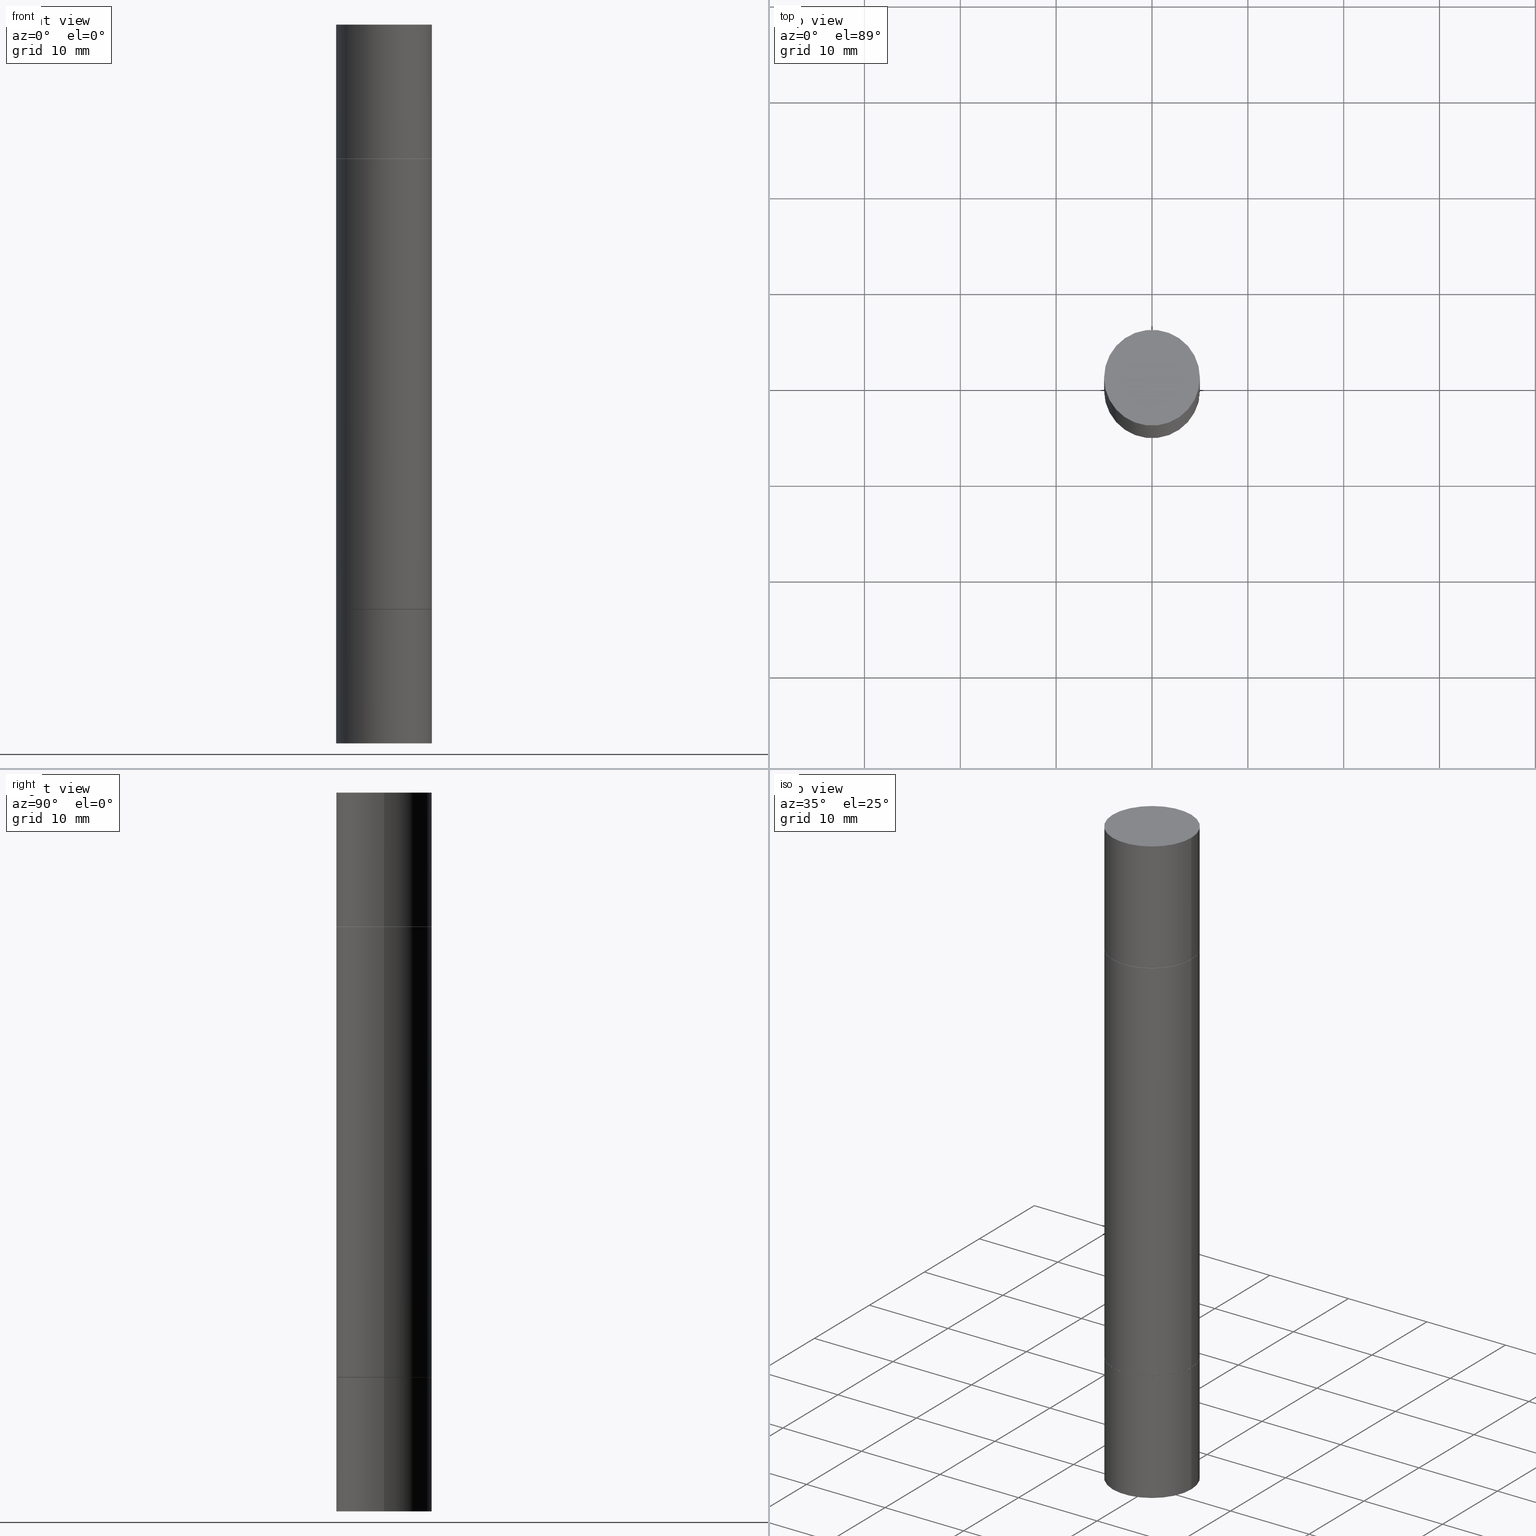
[diagram: canonical four-view strip — front | top / right | iso, engineering-drawing reading convention]
A machine part, canonical four-view strip (front | top / right | iso — engineering-drawing reading convention). The complete STEP part file that produces these views, byte-faithful:
ISO-10303-21;
HEADER;
FILE_DESCRIPTION (( 'STEP AP203' ),
    '1' );
FILE_NAME ('49065.STEP',
    '2024-03-04T15:54:33',
    ( '' ),
    ( '' ),
    'SwSTEP 2.0',
    'SolidWorks 2023',
    '' );
FILE_SCHEMA (( 'CONFIG_CONTROL_DESIGN' ));
ENDSEC;

DATA;
#1 = DIRECTION ( 'NONE',  ( 2.445468806185136597E-29, 3.492890411551752677E-15, 1.000000000000000000 ) ) ;
#2 = FACE_OUTER_BOUND ( 'NONE', #259, .T. ) ;
#3 = ADVANCED_FACE ( 'NONE', ( #597 ), #134, .T. ) ;
#4 = ORIENTED_EDGE ( 'NONE', *, *, #150, .F. ) ;
#5 = APPROVAL_STATUS ( 'not_yet_approved' ) ;
#6 = ADVANCED_FACE ( 'NONE', ( #593 ), #331, .T. ) ;
#7 = DIRECTION ( 'NONE',  ( -2.445468806185136877E-29, -3.492890411551753071E-15, -1.000000000000000000 ) ) ;
#8 = ORIENTED_EDGE ( 'NONE', *, *, #22, .T. ) ;
#9 = CYLINDRICAL_SURFACE ( 'NONE', #646, 0.1968500000000000250 ) ;
#10 = AXIS2_PLACEMENT_3D ( 'NONE', #324, #522, #373 ) ;
#11 = ORIENTED_EDGE ( 'NONE', *, *, #54, .F. ) ;
#12 = CIRCLE ( 'NONE', #192, 0.1968500000000000250 ) ;
#13 = EDGE_CURVE ( 'NONE', #511, #220, #338, .T. ) ;
#14 = DATE_AND_TIME ( #278, #127 ) ;
#15 = EDGE_LOOP ( 'NONE', ( #111, #588 ) ) ;
#16 = DIRECTION ( 'NONE',  ( -1.000000000000000000, 6.982962677686265922E-15, -9.839502134516470631E-33 ) ) ;
#17 = EDGE_LOOP ( 'NONE', ( #416, #443 ) ) ;
#18 = VECTOR ( 'NONE', #498, 39.37007874015748143 ) ;
#19 = SECURITY_CLASSIFICATION ( '', '', #471 ) ;
#20 = CARTESIAN_POINT ( 'NONE',  ( 7.220980290903470182E-29, -1.030964609733603853E-14, -2.952799999999999869 ) ) ;
#21 = DIRECTION ( 'NONE',  ( -2.445468806185136597E-29, -3.492890411551752677E-15, -1.000000000000000000 ) ) ;
#22 = EDGE_CURVE ( 'NONE', #292, #430, #228, .T. ) ;
#23 = CARTESIAN_POINT ( 'NONE',  ( -0.1968500000000000250, 3.899287883846529545E-16, 5.463695987328561936E-16 ) ) ;
#24 = DIRECTION ( 'NONE',  ( -2.445468806185136597E-29, 3.491481338843145583E-15, 1.000000000000000000 ) ) ;
#25 = DIRECTION ( 'NONE',  ( 0.000000000000000000, 3.492185875197449524E-15, 1.000000000000000000 ) ) ;
#26 = EDGE_CURVE ( 'NONE', #249, #511, #306, .T. ) ;
#27 = DIRECTION ( 'NONE',  ( 1.000000000000000000, -6.982962677686267499E-15, 0.000000000000000000 ) ) ;
#28 = CLOSED_SHELL ( 'NONE', ( #304, #108, #493, #189, #418, #85 ) ) ;
#29 = AXIS2_PLACEMENT_3D ( 'NONE', #199, #654, #139 ) ;
#30 = CARTESIAN_POINT ( 'NONE',  ( 0.1958499999999999963, -9.752754823790552857E-15, -2.401599999999999735 ) ) ;
#31 = VECTOR ( 'NONE', #509, 39.37007874015748143 ) ;
#32 = DIRECTION ( 'NONE',  ( -2.438088387897959769E-29, -3.492890411551753071E-15, -1.000000000000000000 ) ) ;
#33 = DIRECTION ( 'NONE',  ( 1.000000000000000000, -6.982962677686268288E-15, 0.000000000000000000 ) ) ;
#34 = PRODUCT_DEFINITION_SHAPE ( 'NONE', 'NONE',  #618 ) ;
#35 = DIRECTION ( 'NONE',  ( -2.445468806185136597E-29, -3.492890411551752677E-15, -1.000000000000000000 ) ) ;
#36 = ORIENTED_EDGE ( 'NONE', *, *, #642, .T. ) ;
#37 = DIRECTION ( 'NONE',  ( 1.000000000000000000, -6.982962677686265922E-15, 9.839502134516470631E-33 ) ) ;
#38 = CYLINDRICAL_SURFACE ( 'NONE', #535, 0.1968500000000000250 ) ;
#39 = ADVANCED_FACE ( 'NONE', ( #549 ), #490, .T. ) ;
#40 = ORIENTED_EDGE ( 'NONE', *, *, #26, .T. ) ;
#41 = VECTOR ( 'NONE', #256, 39.37007874015748143 ) ;
#42 = FACE_OUTER_BOUND ( 'NONE', #307, .T. ) ;
#43 = AXIS2_PLACEMENT_3D ( 'NONE', #581, #115, #679 ) ;
#44 = CIRCLE ( 'NONE', #467, 0.1958499999999999963 ) ;
#45 = CARTESIAN_POINT ( 'NONE',  ( 1.374596203102613789E-15, 0.1968500000000000250, -5.463695987328526437E-16 ) ) ;
#46 = VERTEX_POINT ( 'NONE', #441 ) ;
#47 = DIRECTION ( 'NONE',  ( 1.000000000000000000, -6.982962677686267499E-15, 0.000000000000000000 ) ) ;
#48 = LINE ( 'NONE', #357, #408 ) ;
#49 = ORIENTED_EDGE ( 'NONE', *, *, #137, .F. ) ;
#50 = CARTESIAN_POINT ( 'NONE',  ( 0.1968500000000000250, -3.297797043002877729E-15, -0.5511999999999995792 ) ) ;
#51 = DIRECTION ( 'NONE',  ( -2.445468806185136597E-29, -3.492890411551752677E-15, -1.000000000000000000 ) ) ;
#52 = ORIENTED_EDGE ( 'NONE', *, *, #280, .F. ) ;
#53 = CARTESIAN_POINT ( 'NONE',  ( 5.870592416128037625E-29, -1.926693730311889446E-15, -0.5521999999999996911 ) ) ;
#54 = EDGE_CURVE ( 'NONE', #374, #82, #486, .T. ) ;
#55 = AXIS2_PLACEMENT_3D ( 'NONE', #264, #51, #271 ) ;
#56 = LINE ( 'NONE', #530, #177 ) ;
#57 = VERTEX_POINT ( 'NONE', #387 ) ;
#58 = CC_DESIGN_PERSON_AND_ORGANIZATION_ASSIGNMENT ( #122, #484, ( #526 ) ) ;
#59 = APPROVAL_STATUS ( 'not_yet_approved' ) ;
#60 = MANIFOLD_SOLID_BREP ( 'Mirror1[4]', #615 ) ;
#61 = CYLINDRICAL_SURFACE ( 'NONE', #536, 0.1968500000000000250 ) ;
#62 = EDGE_LOOP ( 'NONE', ( #348, #315, #121, #218 ) ) ;
#63 = CARTESIAN_POINT ( 'NONE',  ( -0.1968500000000000250, -5.762046994505618475E-16, -0.5521999999999996911 ) ) ;
#64 = EDGE_LOOP ( 'NONE', ( #36, #563, #411, #49 ) ) ;
#65 = EDGE_CURVE ( 'NONE', #126, #376, #230, .T. ) ;
#66 = PERSON_AND_ORGANIZATION_ROLE ( 'classification_officer' ) ;
#67 = AXIS2_PLACEMENT_3D ( 'NONE', #200, #32, #561 ) ;
#68 = AXIS2_PLACEMENT_3D ( 'NONE', #145, #349, #160 ) ;
#69 = ORIENTED_EDGE ( 'NONE', *, *, #313, .T. ) ;
#70 = LOCAL_TIME ( 10, 54, 33.00000000000000000, #648 ) ;
#71 = CALENDAR_DATE ( 2024, 4, 3 ) ;
#72 = ORIENTED_EDGE ( 'NONE', *, *, #562, .T. ) ;
#73 = ORIENTED_EDGE ( 'NONE', *, *, #415, .T. ) ;
#74 = CARTESIAN_POINT ( 'NONE',  ( -0.1968500000000000250, -5.762046994505618475E-16, -0.5521999999999996911 ) ) ;
#75 = EDGE_CURVE ( 'NONE', #292, #364, #345, .T. ) ;
#76 = EDGE_CURVE ( 'NONE', #534, #544, #143, .T. ) ;
#77 = ORIENTED_EDGE ( 'NONE', *, *, #65, .F. ) ;
#78 = CIRCLE ( 'NONE', #389, 0.1968499999999998307 ) ;
#79 =( GEOMETRIC_REPRESENTATION_CONTEXT ( 3 ) GLOBAL_UNCERTAINTY_ASSIGNED_CONTEXT ( ( #231 ) ) GLOBAL_UNIT_ASSIGNED_CONTEXT ( ( #204, #362, #574 ) ) REPRESENTATION_CONTEXT ( 'NONE', 'WORKASPACE' ) );
#80 = APPROVAL ( #432, 'UNSPECIFIED' ) ;
#81 = CARTESIAN_POINT ( 'NONE',  ( 3.610490145451734531E-29, -5.154823048668018475E-15, -1.476399999999999491 ) ) ;
#82 = VERTEX_POINT ( 'NONE', #645 ) ;
#83 = CARTESIAN_POINT ( 'NONE',  ( -0.1968500000000000250, 3.899287883846532010E-16, -0.5511999999999995792 ) ) ;
#84 = DIRECTION ( 'NONE',  ( 2.445468806185136597E-29, 3.492890411551752677E-15, 1.000000000000000000 ) ) ;
#85 = ADVANCED_FACE ( 'NONE', ( #179 ), #381, .T. ) ;
#86 = LINE ( 'NONE', #245, #337 ) ;
#87 = DIRECTION ( 'NONE',  ( 1.000000000000000000, -6.982962677686264344E-15, 0.000000000000000000 ) ) ;
#88 = ORIENTED_EDGE ( 'NONE', *, *, #641, .F. ) ;
#89 = AXIS2_PLACEMENT_3D ( 'NONE', #612, #575, #635 ) ;
#90 = ADVANCED_BREP_SHAPE_REPRESENTATION ( '49065', ( #504, #284, #506, #60, #283, #233 ), #79 ) ;
#91 = AXIS2_PLACEMENT_3D ( 'NONE', #365, #565, #101 ) ;
#92 = FACE_OUTER_BOUND ( 'NONE', #215, .T. ) ;
#93 = CARTESIAN_POINT ( 'NONE',  ( 0.1958499999999999963, -9.752754823790552857E-15, -2.401599999999999735 ) ) ;
#94 = DIRECTION ( 'NONE',  ( 1.000000000000000000, -6.982962677686262766E-15, 0.000000000000000000 ) ) ;
#95 = FACE_OUTER_BOUND ( 'NONE', #461, .T. ) ;
#96 = ORIENTED_EDGE ( 'NONE', *, *, #392, .F. ) ;
#97 = LENGTH_MEASURE_WITH_UNIT ( LENGTH_MEASURE( 0.02539999999999999897 ), #407 );
#98 = CARTESIAN_POINT ( 'NONE',  ( -0.1968499999999998307, -2.190269358628626559E-15, -1.476399999999999491 ) ) ;
#99 = ORIENTED_EDGE ( 'NONE', *, *, #279, .F. ) ;
#100 = VECTOR ( 'NONE', #554, 39.37007874015748143 ) ;
#101 = DIRECTION ( 'NONE',  ( 1.000000000000000000, -6.982962677686264344E-15, 0.000000000000000000 ) ) ;
#102 = AXIS2_PLACEMENT_3D ( 'NONE', #422, #170, #267 ) ;
#103 = DIRECTION ( 'NONE',  ( -2.445468806185136877E-29, 3.491481338843145188E-15, 1.000000000000000000 ) ) ;
#104 = DIRECTION ( 'NONE',  ( 0.000000000000000000, 0.000000000000000000, 1.000000000000000000 ) ) ;
#105 = FACE_OUTER_BOUND ( 'NONE', #202, .T. ) ;
#106 = EDGE_LOOP ( 'NONE', ( #207, #591, #485, #119 ) ) ;
#107 = ADVANCED_FACE ( 'NONE', ( #300 ), #510, .T. ) ;
#108 = ADVANCED_FACE ( 'NONE', ( #507 ), #476, .T. ) ;
#109 = DIRECTION ( 'NONE',  ( -2.445468806185136597E-29, 3.491481338843145583E-15, 1.000000000000000000 ) ) ;
#110 = APPROVAL ( #5, 'UNSPECIFIED' ) ;
#111 = ORIENTED_EDGE ( 'NONE', *, *, #540, .T. ) ;
#112 = APPROVAL_ROLE ( '' ) ;
#113 = AXIS2_PLACEMENT_3D ( 'NONE', #551, #84, #27 ) ;
#114 = AXIS2_PLACEMENT_3D ( 'NONE', #20, #132, #660 ) ;
#115 = DIRECTION ( 'NONE',  ( -2.445468806185136597E-29, -3.492890411551752677E-15, -1.000000000000000000 ) ) ;
#116 = ORIENTED_EDGE ( 'NONE', *, *, #167, .F. ) ;
#117 = APPROVAL_DATE_TIME ( #181, #110 ) ;
#118 = DIRECTION ( 'NONE',  ( 1.000000000000000000, -6.982962677686262766E-15, 0.000000000000000000 ) ) ;
#119 = ORIENTED_EDGE ( 'NONE', *, *, #590, .T. ) ;
#120 = DATE_AND_TIME ( #266, #479 ) ;
#121 = ORIENTED_EDGE ( 'NONE', *, *, #299, .F. ) ;
#122 = PERSON_AND_ORGANIZATION ( #543, #319 ) ;
#123 = EDGE_CURVE ( 'NONE', #364, #614, #558, .T. ) ;
#124 = AXIS2_PLACEMENT_3D ( 'NONE', #309, #628, #163 ) ;
#125 = AXIS2_PLACEMENT_3D ( 'NONE', #623, #413, #213 ) ;
#126 = VERTEX_POINT ( 'NONE', #393 ) ;
#127 = LOCAL_TIME ( 10, 54, 33.00000000000000000, #537 ) ;
#128 = CARTESIAN_POINT ( 'NONE',  ( 0.000000000000000000, -1.031172645228302408E-14, -2.952799999999998981 ) ) ;
#129 = LINE ( 'NONE', #164, #294 ) ;
#130 = CC_DESIGN_DATE_AND_TIME_ASSIGNMENT ( #14, #482, ( #19 ) ) ;
#131 = CARTESIAN_POINT ( 'NONE',  ( 7.220980290903470182E-29, -1.030964609733603853E-14, -2.952799999999999869 ) ) ;
#132 = DIRECTION ( 'NONE',  ( -2.445468806185136597E-29, 3.491481338843145583E-15, 1.000000000000000000 ) ) ;
#133 = AXIS2_PLACEMENT_3D ( 'NONE', #447, #602, #653 ) ;
#134 = PLANE ( 'NONE',  #424 ) ;
#135 = CC_DESIGN_APPROVAL ( #195, ( #526 ) ) ;
#136 = CARTESIAN_POINT ( 'NONE',  ( 5.873037884934223228E-29, -1.923200839900336120E-15, -0.5511999999999995792 ) ) ;
#137 = EDGE_CURVE ( 'NONE', #450, #57, #295, .T. ) ;
#138 = DIRECTION ( 'NONE',  ( 1.000000000000000000, -6.982962677686265922E-15, 0.000000000000000000 ) ) ;
#139 = DIRECTION ( 'NONE',  ( 1.000000000000000000, -6.982962677686265922E-15, 0.000000000000000000 ) ) ;
#140 = DIRECTION ( 'NONE',  ( -1.000000000000000000, 6.982962677686265922E-15, -9.839502134516470631E-33 ) ) ;
#141 = CARTESIAN_POINT ( 'NONE',  ( 0.1968500000000000250, -1.372515848155552113E-15, 5.463695987328526437E-16 ) ) ;
#142 = PLANE ( 'NONE',  #67 ) ;
#143 = CIRCLE ( 'NONE', #113, 0.1968500000000000250 ) ;
#144 = ORIENTED_EDGE ( 'NONE', *, *, #438, .T. ) ;
#145 = CARTESIAN_POINT ( 'NONE',  ( 1.374596203102600181E-15, 0.1968499999999980543, -0.5512000000000001343 ) ) ;
#146 = LINE ( 'NONE', #405, #569 ) ;
#147 = ORIENTED_EDGE ( 'NONE', *, *, #601, .T. ) ;
#148 = CARTESIAN_POINT ( 'NONE',  ( 0.000000000000000000, 0.000000000000000000, 0.000000000000000000 ) ) ;
#149 = FACE_OUTER_BOUND ( 'NONE', #334, .T. ) ;
#150 = EDGE_CURVE ( 'NONE', #475, #579, #513, .T. ) ;
#151 = ORIENTED_EDGE ( 'NONE', *, *, #425, .F. ) ;
#152 = CARTESIAN_POINT ( 'NONE',  ( -0.1968500000000000250, -7.948690465007109319E-15, -2.952799999999999869 ) ) ;
#153 = ORIENTED_EDGE ( 'NONE', *, *, #636, .T. ) ;
#154 = CIRCLE ( 'NONE', #240, 0.1958499999999999963 ) ;
#155 = PLANE ( 'NONE',  #446 ) ;
#156 = CIRCLE ( 'NONE', #617, 0.1958499999999999963 ) ;
#157 = LOCAL_TIME ( 10, 54, 33.00000000000000000, #639 ) ;
#158 = CARTESIAN_POINT ( 'NONE',  ( 0.000000000000000000, -1.031172645228302408E-14, -2.952799999999998981 ) ) ;
#159 = ADVANCED_FACE ( 'NONE', ( #149 ), #395, .F. ) ;
#160 = DIRECTION ( 'NONE',  ( -1.000000000000000000, 6.982962677686265922E-15, -9.839502134516470631E-33 ) ) ;
#161 = CARTESIAN_POINT ( 'NONE',  ( 0.1968499999999998307, -1.168632265538556411E-14, -2.952799999999998981 ) ) ;
#162 = ORIENTED_EDGE ( 'NONE', *, *, #279, .T. ) ;
#163 = DIRECTION ( 'NONE',  ( 1.000000000000000000, -6.982962677686262766E-15, 0.000000000000000000 ) ) ;
#164 = CARTESIAN_POINT ( 'NONE',  ( 0.1958499999999999963, -3.290814080325190531E-15, -0.5511999999999992461 ) ) ;
#165 = ORIENTED_EDGE ( 'NONE', *, *, #594, .T. ) ;
#166 = PERSON_AND_ORGANIZATION ( #543, #319 ) ;
#167 = EDGE_CURVE ( 'NONE', #650, #57, #146, .T. ) ;
#168 = AXIS2_PLACEMENT_3D ( 'NONE', #402, #347, #400 ) ;
#169 = CIRCLE ( 'NONE', #232, 0.1968500000000000250 ) ;
#170 = DIRECTION ( 'NONE',  ( -2.445468806185136597E-29, -3.492890411551752677E-15, -1.000000000000000000 ) ) ;
#171 = ORIENTED_EDGE ( 'NONE', *, *, #438, .F. ) ;
#172 = MECHANICAL_CONTEXT ( 'NONE', #434, 'mechanical' ) ;
#173 = EDGE_LOOP ( 'NONE', ( #4, #153, #622, #519 ) ) ;
#174 = DATE_AND_TIME ( #269, #263 ) ;
#175 = ORIENTED_EDGE ( 'NONE', *, *, #167, .T. ) ;
#176 = VECTOR ( 'NONE', #599, 39.37007874015748143 ) ;
#177 = VECTOR ( 'NONE', #333, 39.37007874015748143 ) ;
#178 = AXIS2_PLACEMENT_3D ( 'NONE', #631, #462, #677 ) ;
#179 = FACE_OUTER_BOUND ( 'NONE', #367, .T. ) ;
#180 = EDGE_CURVE ( 'NONE', #126, #374, #454, .T. ) ;
#181 = DATE_AND_TIME ( #71, #157 ) ;
#182 = CYLINDRICAL_SURFACE ( 'NONE', #10, 0.1968499999999998307 ) ;
#183 = CC_DESIGN_PERSON_AND_ORGANIZATION_ASSIGNMENT ( #478, #326, ( #526 ) ) ;
#184 = CARTESIAN_POINT ( 'NONE',  ( 0.1968500000000000250, -1.374596203102541608E-15, 9.598753983154300858E-30 ) ) ;
#185 = FACE_OUTER_BOUND ( 'NONE', #64, .T. ) ;
#186 = CARTESIAN_POINT ( 'NONE',  ( 0.000000000000000000, -1.031172645228302408E-14, -2.952799999999998981 ) ) ;
#187 = ADVANCED_FACE ( 'NONE', ( #502 ), #354, .T. ) ;
#188 = DIRECTION ( 'NONE',  ( -2.445468806185136597E-29, 3.491481338843145583E-15, 1.000000000000000000 ) ) ;
#189 = ADVANCED_FACE ( 'NONE', ( #671 ), #142, .F. ) ;
#190 = AXIS2_PLACEMENT_3D ( 'NONE', #625, #310, #140 ) ;
#191 = DIRECTION ( 'NONE',  ( 1.000000000000000000, -6.982962677686268288E-15, 0.000000000000000000 ) ) ;
#192 = AXIS2_PLACEMENT_3D ( 'NONE', #53, #1, #47 ) ;
#193 = DIRECTION ( 'NONE',  ( -2.445468806185136597E-29, 3.491481338843145583E-15, 1.000000000000000000 ) ) ;
#194 = DIRECTION ( 'NONE',  ( 2.438088387897959769E-29, 3.492890411551753071E-15, 1.000000000000000000 ) ) ;
#195 = APPROVAL ( #59, 'UNSPECIFIED' ) ;
#196 = CARTESIAN_POINT ( 'NONE',  ( 0.1968500000000000250, -1.168424230043858014E-14, -2.952799999999999869 ) ) ;
#197 = DIRECTION ( 'NONE',  ( 1.000000000000000000, -6.982962677686267499E-15, 0.000000000000000000 ) ) ;
#198 = VERTEX_POINT ( 'NONE', #98 ) ;
#199 = CARTESIAN_POINT ( 'NONE',  ( 7.220980290903470182E-29, 2.080354946989631982E-18, 5.463695987328526437E-16 ) ) ;
#200 = CARTESIAN_POINT ( 'NONE',  ( 5.873037884934223228E-29, -1.923200839900334937E-15, -0.5511999999999992461 ) ) ;
#201 = CLOSED_SHELL ( 'NONE', ( #375, #3, #159, #39 ) ) ;
#202 = EDGE_LOOP ( 'NONE', ( #359, #88, #175, #147 ) ) ;
#203 = AXIS2_PLACEMENT_3D ( 'NONE', #605, #505, #33 ) ;
#204 =( CONVERSION_BASED_UNIT ( 'INCH', #97 ) LENGTH_UNIT ( ) NAMED_UNIT ( #585 ) );
#205 = ADVANCED_FACE ( 'NONE', ( #95 ), #38, .T. ) ;
#206 = DIRECTION ( 'NONE',  ( 2.445468806185136597E-29, 3.492890411551752677E-15, 1.000000000000000000 ) ) ;
#207 = ORIENTED_EDGE ( 'NONE', *, *, #180, .F. ) ;
#208 = DIRECTION ( 'NONE',  ( 1.000000000000000000, -6.982962677686268288E-15, 0.000000000000000000 ) ) ;
#209 = DIRECTION ( 'NONE',  ( -2.438088387897959769E-29, -3.492890411551753071E-15, -1.000000000000000000 ) ) ;
#210 = CARTESIAN_POINT ( 'NONE',  ( -0.1968500000000000250, -3.804334017806689102E-15, -2.400599999999999401 ) ) ;
#211 = ORIENTED_EDGE ( 'NONE', *, *, #590, .F. ) ;
#212 = AXIS2_PLACEMENT_3D ( 'NONE', #491, #25, #444 ) ;
#213 = DIRECTION ( 'NONE',  ( 1.000000000000000000, -6.982962677686267499E-15, 0.000000000000000000 ) ) ;
#214 = DIRECTION ( 'NONE',  ( 1.000000000000000000, -6.982962677686267499E-15, 0.000000000000000000 ) ) ;
#215 = EDGE_LOOP ( 'NONE', ( #483, #429, #234, #458 ) ) ;
#216 = CARTESIAN_POINT ( 'NONE',  ( 0.1968500000000000250, -3.301289933414429871E-15, -0.5521999999999996911 ) ) ;
#217 = CARTESIAN_POINT ( 'NONE',  ( -0.1968500000000000250, -7.948690465007109319E-15, -2.401599999999999735 ) ) ;
#218 = ORIENTED_EDGE ( 'NONE', *, *, #13, .F. ) ;
#219 = DIRECTION ( 'NONE',  ( 1.000000000000000000, -6.982962677686262766E-15, 0.000000000000000000 ) ) ;
#220 = VERTEX_POINT ( 'NONE', #668 ) ;
#221 = EDGE_CURVE ( 'NONE', #620, #531, #154, .T. ) ;
#222 = DIRECTION ( 'NONE',  ( 1.000000000000000000, 0.000000000000000000, 0.000000000000000000 ) ) ;
#223 = AXIS2_PLACEMENT_3D ( 'NONE', #621, #246, #619 ) ;
#224 = DIRECTION ( 'NONE',  ( 1.000000000000000000, -6.982962677686267499E-15, 0.000000000000000000 ) ) ;
#225 = ORIENTED_EDGE ( 'NONE', *, *, #494, .F. ) ;
#226 = ORIENTED_EDGE ( 'NONE', *, *, #65, .T. ) ;
#227 = COORDINATED_UNIVERSAL_TIME_OFFSET ( 5, 0, .BEHIND. ) ;
#228 = LINE ( 'NONE', #384, #665 ) ;
#229 = CC_DESIGN_PERSON_AND_ORGANIZATION_ASSIGNMENT ( #644, #66, ( #19 ) ) ;
#230 = CIRCLE ( 'NONE', #398, 0.1958499999999999963 ) ;
#231 = UNCERTAINTY_MEASURE_WITH_UNIT (LENGTH_MEASURE( 1.000000000000000082E-05 ), #204, 'distance_accuracy_value', 'NONE');
#232 = AXIS2_PLACEMENT_3D ( 'NONE', #629, #366, #652 ) ;
#233 = AXIS2_PLACEMENT_3D ( 'NONE', #148, #104, #222 ) ;
#234 = ORIENTED_EDGE ( 'NONE', *, *, #137, .T. ) ;
#235 = CARTESIAN_POINT ( 'NONE',  ( 3.610490145451734531E-29, -5.154823048668018475E-15, -1.476399999999999491 ) ) ;
#236 = DIRECTION ( 'NONE',  ( 1.000000000000000000, -6.982962677686267499E-15, 0.000000000000000000 ) ) ;
#237 = DIRECTION ( 'NONE',  ( 0.000000000000000000, 1.000000000000000000, -4.163344669033678790E-15 ) ) ;
#238 = DIRECTION ( 'NONE',  ( 2.445468806185136597E-29, 3.492890411551752677E-15, 1.000000000000000000 ) ) ;
#239 = PLANE ( 'NONE',  #426 ) ;
#240 = AXIS2_PLACEMENT_3D ( 'NONE', #457, #206, #208 ) ;
#241 = ADVANCED_FACE ( 'NONE', ( #566 ), #515, .T. ) ;
#242 = CARTESIAN_POINT ( 'NONE',  ( 1.374596203102613789E-15, 0.1968500000000000250, -5.463695987328526437E-16 ) ) ;
#243 = DIRECTION ( 'NONE',  ( 2.445468806185136597E-29, 3.492890411551752677E-15, 1.000000000000000000 ) ) ;
#244 = DIRECTION ( 'NONE',  ( 2.445468806185136597E-29, 3.492890411551752677E-15, 1.000000000000000000 ) ) ;
#245 = CARTESIAN_POINT ( 'NONE',  ( 0.1968500000000000250, -1.168632265538556569E-14, -2.952799999999998981 ) ) ;
#246 = DIRECTION ( 'NONE',  ( 2.445468806185136597E-29, 3.492890411551752677E-15, 1.000000000000000000 ) ) ;
#247 = ORIENTED_EDGE ( 'NONE', *, *, #440, .F. ) ;
#248 = DIRECTION ( 'NONE',  ( -2.445468806185136597E-29, 3.491481338843145583E-15, 1.000000000000000000 ) ) ;
#249 = VERTEX_POINT ( 'NONE', #152 ) ;
#250 = AXIS2_PLACEMENT_3D ( 'NONE', #552, #193, #391 ) ;
#251 = CYLINDRICAL_SURFACE ( 'NONE', #91, 0.1968499999999998307 ) ;
#252 = DIRECTION ( 'NONE',  ( -1.000000000000000000, 6.982962677686265922E-15, -9.839502134516470631E-33 ) ) ;
#253 = EDGE_LOOP ( 'NONE', ( #672, #423 ) ) ;
#254 = EDGE_CURVE ( 'NONE', #249, #328, #48, .T. ) ;
#255 = FACE_OUTER_BOUND ( 'NONE', #508, .T. ) ;
#256 = DIRECTION ( 'NONE',  ( 0.7071067811864267805, -2.468850131080992517E-15, 0.7071067811866682540 ) ) ;
#257 = LINE ( 'NONE', #580, #31 ) ;
#258 = CARTESIAN_POINT ( 'NONE',  ( 0.1958499999999999963, -3.290814080325190531E-15, -0.5511999999999992461 ) ) ;
#259 = EDGE_LOOP ( 'NONE', ( #583, #640, #73, #523 ) ) ;
#260 = AXIS2_PLACEMENT_3D ( 'NONE', #131, #24, #288 ) ;
#261 = AXIS2_PLACEMENT_3D ( 'NONE', #610, #244, #197 ) ;
#262 = DIRECTION ( 'NONE',  ( -2.438088387897960049E-29, 3.491481338843145188E-15, 1.000000000000000000 ) ) ;
#263 = LOCAL_TIME ( 10, 54, 33.00000000000000000, #227 ) ;
#264 = CARTESIAN_POINT ( 'NONE',  ( 0.000000000000000000, -1.031172645228302408E-14, -2.952799999999998981 ) ) ;
#265 = ORIENTED_EDGE ( 'NONE', *, *, #299, .T. ) ;
#266 = CALENDAR_DATE ( 2024, 4, 3 ) ;
#267 = DIRECTION ( 'NONE',  ( 1.000000000000000000, -6.982962677686268288E-15, 0.000000000000000000 ) ) ;
#268 = ORIENTED_EDGE ( 'NONE', *, *, #553, .F. ) ;
#269 = CALENDAR_DATE ( 2024, 4, 3 ) ;
#270 = PRODUCT_RELATED_PRODUCT_CATEGORY ( 'detail', '', ( #351 ) ) ;
#271 = DIRECTION ( 'NONE',  ( 1.000000000000000000, -6.982962677686264344E-15, 0.000000000000000000 ) ) ;
#272 = ORIENTED_EDGE ( 'NONE', *, *, #548, .T. ) ;
#273 = COORDINATED_UNIVERSAL_TIME_OFFSET ( 5, 0, .BEHIND. ) ;
#274 = VECTOR ( 'NONE', #452, 39.37007874015748143 ) ;
#275 = CIRCLE ( 'NONE', #582, 0.1968500000000000250 ) ;
#276 = CONICAL_SURFACE ( 'NONE', #178, 0.1958499999999999963, 0.7853981633972775267 ) ;
#277 = ORIENTED_EDGE ( 'NONE', *, *, #76, .F. ) ;
#278 = CALENDAR_DATE ( 2024, 4, 3 ) ;
#279 = EDGE_CURVE ( 'NONE', #544, #534, #287, .T. ) ;
#280 = EDGE_CURVE ( 'NONE', #328, #220, #499, .T. ) ;
#281 = ORIENTED_EDGE ( 'NONE', *, *, #75, .F. ) ;
#282 = APPROVAL_DATE_TIME ( #174, #195 ) ;
#283 = MANIFOLD_SOLID_BREP ( 'Combine1', #555 ) ;
#284 = MANIFOLD_SOLID_BREP ( 'Mirror1[1]', #28 ) ;
#285 = ORIENTED_EDGE ( 'NONE', *, *, #22, .F. ) ;
#286 = LINE ( 'NONE', #320, #330 ) ;
#287 = CIRCLE ( 'NONE', #261, 0.1968500000000000250 ) ;
#288 = DIRECTION ( 'NONE',  ( 1.000000000000000000, -6.982962677686267499E-15, 0.000000000000000000 ) ) ;
#289 = DIRECTION ( 'NONE',  ( -1.000000000000000000, 6.982962677686265922E-15, -4.876176775795935793E-29 ) ) ;
#290 = ORIENTED_EDGE ( 'NONE', *, *, #487, .T. ) ;
#291 = DIRECTION ( 'NONE',  ( -0.000000000000000000, -3.492185875197449130E-15, -1.000000000000000000 ) ) ;
#292 = VERTEX_POINT ( 'NONE', #587 ) ;
#293 = CARTESIAN_POINT ( 'NONE',  ( -0.1958499999999999963, -6.993543635379541272E-15, -2.401599999999999735 ) ) ;
#294 = VECTOR ( 'NONE', #368, 39.37007874015748143 ) ;
#295 = LINE ( 'NONE', #93, #41 ) ;
#296 = ORIENTED_EDGE ( 'NONE', *, *, #54, .T. ) ;
#297 = EDGE_CURVE ( 'NONE', #46, #450, #435, .T. ) ;
#298 = DIRECTION ( 'NONE',  ( -2.445468806185136597E-29, 3.491481338843145583E-15, 1.000000000000000000 ) ) ;
#299 = EDGE_CURVE ( 'NONE', #220, #328, #346, .T. ) ;
#300 = FACE_OUTER_BOUND ( 'NONE', #62, .T. ) ;
#301 = ADVANCED_FACE ( 'NONE', ( #2 ), #371, .T. ) ;
#302 = ORIENTED_EDGE ( 'NONE', *, *, #642, .F. ) ;
#303 = DIRECTION ( 'NONE',  ( 1.000000000000000000, -6.982962677686268288E-15, 0.000000000000000000 ) ) ;
#304 = ADVANCED_FACE ( 'NONE', ( #524 ), #182, .T. ) ;
#305 = CARTESIAN_POINT ( 'NONE',  ( 0.000000000000000000, 0.000000000000000000, 0.000000000000000000 ) ) ;
#306 = CIRCLE ( 'NONE', #260, 0.1968500000000000250 ) ;
#307 = EDGE_LOOP ( 'NONE', ( #455, #69, #633, #116 ) ) ;
#308 = CONICAL_SURFACE ( 'NONE', #412, 0.1958499999999999963, 0.7853981633972775267 ) ;
#309 = CARTESIAN_POINT ( 'NONE',  ( 5.870592416128037625E-29, -8.381650102026854256E-15, -2.400599999999999401 ) ) ;
#310 = DIRECTION ( 'NONE',  ( 2.438088387897959769E-29, 3.492890411551753071E-15, 1.000000000000000000 ) ) ;
#311 = ORIENTED_EDGE ( 'NONE', *, *, #415, .F. ) ;
#312 = DIRECTION ( 'NONE',  ( 1.000000000000000000, -6.982962677686265922E-15, 4.876176775795935793E-29 ) ) ;
#313 = EDGE_CURVE ( 'NONE', #420, #340, #56, .T. ) ;
#314 = DIRECTION ( 'NONE',  ( 2.445468806185136597E-29, 3.492890411551752677E-15, 1.000000000000000000 ) ) ;
#315 = ORIENTED_EDGE ( 'NONE', *, *, #254, .T. ) ;
#316 = CYLINDRICAL_SURFACE ( 'NONE', #55, 0.1968499999999998307 ) ;
#317 = ORIENTED_EDGE ( 'NONE', *, *, #180, .T. ) ;
#318 = PERSON_AND_ORGANIZATION_ROLE ( 'creator' ) ;
#319 = ORGANIZATION ( 'UNSPECIFIED', 'UNSPECIFIED', '' ) ;
#320 = CARTESIAN_POINT ( 'NONE',  ( -0.1968499999999998307, -8.961237421421701017E-15, -2.952799999999998981 ) ) ;
#321 = EDGE_LOOP ( 'NONE', ( #541, #525, #72, #162 ) ) ;
#322 = EDGE_CURVE ( 'NONE', #376, #126, #156, .T. ) ;
#323 = SHAPE_DEFINITION_REPRESENTATION ( #34, #90 ) ;
#324 = CARTESIAN_POINT ( 'NONE',  ( 0.000000000000000000, -1.031172645228302408E-14, -2.952799999999998981 ) ) ;
#325 = ORIENTED_EDGE ( 'NONE', *, *, #425, .T. ) ;
#326 = PERSON_AND_ORGANIZATION_ROLE ( 'creator' ) ;
#327 = DESIGN_CONTEXT ( 'detailed design', #564, 'design' ) ;
#328 = VERTEX_POINT ( 'NONE', #217 ) ;
#329 = PERSON_AND_ORGANIZATION_ROLE ( 'design_owner' ) ;
#330 = VECTOR ( 'NONE', #472, 39.37007874015748143 ) ;
#331 = CYLINDRICAL_SURFACE ( 'NONE', #133, 0.1968500000000000250 ) ;
#332 = DIRECTION ( 'NONE',  ( -2.445468806185136597E-29, -3.492890411551752677E-15, -1.000000000000000000 ) ) ;
#333 = DIRECTION ( 'NONE',  ( -2.445468806185136877E-29, -3.492890411551753071E-15, -1.000000000000000000 ) ) ;
#334 = EDGE_LOOP ( 'NONE', ( #659, #676 ) ) ;
#335 = DIRECTION ( 'NONE',  ( 1.000000000000000000, -6.982962677686267499E-15, 0.000000000000000000 ) ) ;
#336 = AXIS2_PLACEMENT_3D ( 'NONE', #342, #35, #303 ) ;
#337 = VECTOR ( 'NONE', #609, 39.37007874015748143 ) ;
#338 = LINE ( 'NONE', #184, #176 ) ;
#339 = CARTESIAN_POINT ( 'NONE',  ( -0.1958499999999999963, -5.778885032436711881E-16, -0.5511999999999992461 ) ) ;
#340 = VERTEX_POINT ( 'NONE', #210 ) ;
#341 = DIRECTION ( 'NONE',  ( 2.445468806185136597E-29, 3.492890411551752677E-15, 1.000000000000000000 ) ) ;
#342 = CARTESIAN_POINT ( 'NONE',  ( 5.873037884934223228E-29, -1.923200839900334937E-15, -0.5511999999999992461 ) ) ;
#343 = ADVANCED_FACE ( 'NONE', ( #105 ), #316, .T. ) ;
#344 = CARTESIAN_POINT ( 'NONE',  ( 1.374596203102600181E-15, 0.1968499999999916150, -2.401600000000000623 ) ) ;
#345 = CIRCLE ( 'NONE', #370, 0.1968500000000000250 ) ;
#346 = CIRCLE ( 'NONE', #557, 0.1968500000000000250 ) ;
#347 = DIRECTION ( 'NONE',  ( -2.445468806185136597E-29, 3.491481338843145583E-15, 1.000000000000000000 ) ) ;
#348 = ORIENTED_EDGE ( 'NONE', *, *, #533, .T. ) ;
#349 = DIRECTION ( 'NONE',  ( 2.438088387897959769E-29, 3.492890411551753071E-15, 1.000000000000000000 ) ) ;
#350 = DIRECTION ( 'NONE',  ( 2.438088387897960049E-29, -3.491481338843145188E-15, -1.000000000000000000 ) ) ;
#351 = PRODUCT ( '49065', '49065', '', ( #172 ) ) ;
#352 = ORIENTED_EDGE ( 'NONE', *, *, #123, .F. ) ;
#353 = CARTESIAN_POINT ( 'NONE',  ( -0.1968500000000000250, -8.961237421421697861E-15, -2.952799999999998981 ) ) ;
#354 = PLANE ( 'NONE',  #656 ) ;
#355 = EDGE_LOOP ( 'NONE', ( #77, #317, #296, #96 ) ) ;
#356 = PLANE ( 'NONE',  #607 ) ;
#357 = CARTESIAN_POINT ( 'NONE',  ( -0.1968500000000000250, 1.398703375343757393E-15, -9.682923725166783677E-30 ) ) ;
#358 = AXIS2_PLACEMENT_3D ( 'NONE', #186, #21, #236 ) ;
#359 = ORIENTED_EDGE ( 'NONE', *, *, #313, .F. ) ;
#360 = AXIS2_PLACEMENT_3D ( 'NONE', #616, #451, #560 ) ;
#361 = CC_DESIGN_APPROVAL ( #80, ( #618 ) ) ;
#362 =( NAMED_UNIT ( * ) PLANE_ANGLE_UNIT ( ) SI_UNIT ( $, .RADIAN. ) );
#363 = CARTESIAN_POINT ( 'NONE',  ( 5.873037884934223228E-29, -8.385141583365697263E-15, -2.401599999999999735 ) ) ;
#364 = VERTEX_POINT ( 'NONE', #578 ) ;
#365 = CARTESIAN_POINT ( 'NONE',  ( 0.000000000000000000, -1.031172645228302408E-14, -2.952799999999998981 ) ) ;
#366 = DIRECTION ( 'NONE',  ( 2.445468806185136597E-29, 3.492890411551752677E-15, 1.000000000000000000 ) ) ;
#367 = EDGE_LOOP ( 'NONE', ( #151, #211, #144, #225 ) ) ;
#368 = DIRECTION ( 'NONE',  ( 0.7071067811864267805, -7.407546758113824138E-15, -0.7071067811866682540 ) ) ;
#369 = ORIENTED_EDGE ( 'NONE', *, *, #322, .T. ) ;
#370 = AXIS2_PLACEMENT_3D ( 'NONE', #390, #608, #138 ) ;
#371 = CONICAL_SURFACE ( 'NONE', #102, 0.1958499999999999963, 0.7853981633972775267 ) ;
#372 = PERSON_AND_ORGANIZATION ( #543, #319 ) ;
#373 = DIRECTION ( 'NONE',  ( 1.000000000000000000, -6.982962677686264344E-15, 0.000000000000000000 ) ) ;
#374 = VERTEX_POINT ( 'NONE', #63 ) ;
#375 = ADVANCED_FACE ( 'NONE', ( #436 ), #9, .T. ) ;
#376 = VERTEX_POINT ( 'NONE', #258 ) ;
#377 = APPROVAL_DATE_TIME ( #120, #80 ) ;
#378 = DIRECTION ( 'NONE',  ( 2.438088387897959769E-29, 3.492890411551753071E-15, 1.000000000000000000 ) ) ;
#379 = APPROVAL_ROLE ( '' ) ;
#380 = VECTOR ( 'NONE', #598, 39.37007874015748143 ) ;
#381 = CYLINDRICAL_SURFACE ( 'NONE', #497, 0.1968499999999998307 ) ;
#382 = PERSON_AND_ORGANIZATION ( #543, #319 ) ;
#383 = CARTESIAN_POINT ( 'NONE',  ( 0.1958499999999999963, -3.290814080325190531E-15, -0.5511999999999992461 ) ) ;
#384 = CARTESIAN_POINT ( 'NONE',  ( -0.1968500000000000250, -8.961237421421697861E-15, -2.952799999999998981 ) ) ;
#385 = DIRECTION ( 'NONE',  ( -0.000000000000000000, -3.492185875197449130E-15, -1.000000000000000000 ) ) ;
#386 = ADVANCED_FACE ( 'NONE', ( #649 ), #61, .T. ) ;
#387 = CARTESIAN_POINT ( 'NONE',  ( 0.1968500000000000250, -9.756246305129394287E-15, -2.400599999999999401 ) ) ;
#388 = FACE_OUTER_BOUND ( 'NONE', #396, .T. ) ;
#389 = AXIS2_PLACEMENT_3D ( 'NONE', #235, #385, #237 ) ;
#390 = CARTESIAN_POINT ( 'NONE',  ( 7.220980290903470182E-29, 2.080354946989631982E-18, 5.463695987328526437E-16 ) ) ;
#391 = DIRECTION ( 'NONE',  ( 1.000000000000000000, -6.982962677686262766E-15, 0.000000000000000000 ) ) ;
#392 = EDGE_CURVE ( 'NONE', #376, #82, #419, .T. ) ;
#393 = CARTESIAN_POINT ( 'NONE',  ( -0.1958499999999999963, -5.778885032436711881E-16, -0.5511999999999992461 ) ) ;
#394 = CARTESIAN_POINT ( 'NONE',  ( 5.873037884934223228E-29, -8.385141583365697263E-15, -2.401599999999999735 ) ) ;
#395 = PLANE ( 'NONE',  #190 ) ;
#396 = EDGE_LOOP ( 'NONE', ( #265, #573 ) ) ;
#397 = PLANE ( 'NONE',  #68 ) ;
#398 = AXIS2_PLACEMENT_3D ( 'NONE', #433, #655, #191 ) ;
#399 = CIRCLE ( 'NONE', #114, 0.1968500000000000250 ) ;
#400 = DIRECTION ( 'NONE',  ( 1.000000000000000000, -6.982962677686265922E-15, 4.876176775795935793E-29 ) ) ;
#401 = ORIENTED_EDGE ( 'NONE', *, *, #548, .F. ) ;
#402 = CARTESIAN_POINT ( 'NONE',  ( 0.000000000000000000, 0.000000000000000000, 0.000000000000000000 ) ) ;
#403 = ORIENTED_EDGE ( 'NONE', *, *, #297, .F. ) ;
#404 = APPLICATION_PROTOCOL_DEFINITION ( 'international standard', 'config_control_design', 1994, #434 ) ;
#405 = CARTESIAN_POINT ( 'NONE',  ( 0.1968499999999998307, -1.168632265538556411E-14, -2.952799999999998981 ) ) ;
#406 = CC_DESIGN_PERSON_AND_ORGANIZATION_ASSIGNMENT ( #372, #318, ( #618 ) ) ;
#407 =( LENGTH_UNIT ( ) NAMED_UNIT ( * ) SI_UNIT ( $, .METRE. ) );
#408 = VECTOR ( 'NONE', #103, 39.37007874015748143 ) ;
#409 = CARTESIAN_POINT ( 'NONE',  ( 5.873037884934223228E-29, -1.923200839900334937E-15, -0.5511999999999992461 ) ) ;
#410 = AXIS2_PLACEMENT_3D ( 'NONE', #45, #194, #252 ) ;
#411 = ORIENTED_EDGE ( 'NONE', *, *, #601, .F. ) ;
#412 = AXIS2_PLACEMENT_3D ( 'NONE', #442, #298, #489 ) ;
#413 = DIRECTION ( 'NONE',  ( 2.445468806185136597E-29, 3.492890411551752677E-15, 1.000000000000000000 ) ) ;
#414 = CARTESIAN_POINT ( 'NONE',  ( -0.1968500000000000250, 3.899287883846532010E-16, -0.5511999999999995792 ) ) ;
#415 = EDGE_CURVE ( 'NONE', #620, #650, #129, .T. ) ;
#416 = ORIENTED_EDGE ( 'NONE', *, *, #440, .T. ) ;
#417 = DIRECTION ( 'NONE',  ( -2.445468806185136597E-29, 3.491481338843145583E-15, 1.000000000000000000 ) ) ;
#418 = ADVANCED_FACE ( 'NONE', ( #542 ), #626, .T. ) ;
#419 = LINE ( 'NONE', #383, #380 ) ;
#420 = VERTEX_POINT ( 'NONE', #74 ) ;
#421 = DATE_TIME_ROLE ( 'creation_date' ) ;
#422 = CARTESIAN_POINT ( 'NONE',  ( 5.873037884934223228E-29, -1.923200839900334937E-15, -0.5511999999999992461 ) ) ;
#423 = ORIENTED_EDGE ( 'NONE', *, *, #494, .T. ) ;
#424 = AXIS2_PLACEMENT_3D ( 'NONE', #242, #378, #16 ) ;
#425 = EDGE_CURVE ( 'NONE', #374, #198, #286, .T. ) ;
#426 = AXIS2_PLACEMENT_3D ( 'NONE', #344, #556, #289 ) ;
#427 = APPROVAL_ROLE ( '' ) ;
#428 = APPROVAL_PERSON_ORGANIZATION ( #166, #195, #427 ) ;
#429 = ORIENTED_EDGE ( 'NONE', *, *, #297, .T. ) ;
#430 = VERTEX_POINT ( 'NONE', #414 ) ;
#431 = CC_DESIGN_DATE_AND_TIME_ASSIGNMENT ( #584, #421, ( #618 ) ) ;
#432 = APPROVAL_STATUS ( 'not_yet_approved' ) ;
#433 = CARTESIAN_POINT ( 'NONE',  ( 5.873037884934223228E-29, -1.923200839900334937E-15, -0.5511999999999992461 ) ) ;
#434 = APPLICATION_CONTEXT ( 'configuration controlled 3d designs of mechanical parts and assemblies' ) ;
#435 = CIRCLE ( 'NONE', #465, 0.1958499999999999963 ) ;
#436 = FACE_OUTER_BOUND ( 'NONE', #662, .T. ) ;
#437 = EDGE_LOOP ( 'NONE', ( #11, #325, #268, #171 ) ) ;
#438 = EDGE_CURVE ( 'NONE', #82, #503, #674, .T. ) ;
#439 = CARTESIAN_POINT ( 'NONE',  ( 5.873037884934223228E-29, -1.923200839900336120E-15, -0.5511999999999995792 ) ) ;
#440 = EDGE_CURVE ( 'NONE', #364, #292, #169, .T. ) ;
#441 = CARTESIAN_POINT ( 'NONE',  ( -0.1958499999999999963, -6.988245181031318870E-15, -2.401599999999999735 ) ) ;
#442 = CARTESIAN_POINT ( 'NONE',  ( 5.873037884934223228E-29, -8.385141583365697263E-15, -2.401599999999999735 ) ) ;
#443 = ORIENTED_EDGE ( 'NONE', *, *, #75, .T. ) ;
#444 = DIRECTION ( 'NONE',  ( 0.000000000000000000, 1.000000000000000000, -3.492185875197449524E-15 ) ) ;
#445 = CIRCLE ( 'NONE', #125, 0.1968500000000000250 ) ;
#446 = AXIS2_PLACEMENT_3D ( 'NONE', #673, #209, #37 ) ;
#447 = CARTESIAN_POINT ( 'NONE',  ( 0.000000000000000000, -1.031172645228302408E-14, -2.952799999999998981 ) ) ;
#448 = FACE_OUTER_BOUND ( 'NONE', #253, .T. ) ;
#449 = CARTESIAN_POINT ( 'NONE',  ( 0.1968500000000000250, -1.168632265538556569E-14, -2.952799999999998981 ) ) ;
#450 = VERTEX_POINT ( 'NONE', #30 ) ;
#451 = DIRECTION ( 'NONE',  ( 2.445468806185136597E-29, 3.492890411551752677E-15, 1.000000000000000000 ) ) ;
#452 = DIRECTION ( 'NONE',  ( -0.7071067811864267805, 2.381258160590016583E-15, -0.7071067811866682540 ) ) ;
#453 = CLOSED_SHELL ( 'NONE', ( #107, #187, #586, #205 ) ) ;
#454 = LINE ( 'NONE', #518, #274 ) ;
#455 = ORIENTED_EDGE ( 'NONE', *, *, #594, .F. ) ;
#456 = FACE_OUTER_BOUND ( 'NONE', #466, .T. ) ;
#457 = CARTESIAN_POINT ( 'NONE',  ( 5.873037884934223228E-29, -1.923200839900334937E-15, -0.5511999999999992461 ) ) ;
#458 = ORIENTED_EDGE ( 'NONE', *, *, #539, .F. ) ;
#459 = DIRECTION ( 'NONE',  ( 1.000000000000000000, -6.982962677686262766E-15, 0.000000000000000000 ) ) ;
#460 = CARTESIAN_POINT ( 'NONE',  ( 1.374596203102613789E-15, 0.1968499999999896999, -2.952800000000000313 ) ) ;
#461 = EDGE_LOOP ( 'NONE', ( #576, #40, #630, #52 ) ) ;
#462 = DIRECTION ( 'NONE',  ( -2.445468806185136597E-29, -3.492890411551752677E-15, -1.000000000000000000 ) ) ;
#463 = ADVANCED_FACE ( 'NONE', ( #185 ), #477, .T. ) ;
#464 = DIRECTION ( 'NONE',  ( -2.445468806185136597E-29, -3.492890411551752677E-15, -1.000000000000000000 ) ) ;
#465 = AXIS2_PLACEMENT_3D ( 'NONE', #627, #109, #118 ) ;
#466 = EDGE_LOOP ( 'NONE', ( #680, #272 ) ) ;
#467 = AXIS2_PLACEMENT_3D ( 'NONE', #568, #417, #459 ) ;
#468 = LINE ( 'NONE', #353, #501 ) ;
#469 = CARTESIAN_POINT ( 'NONE',  ( 0.000000000000000000, -1.031172645228302408E-14, -2.952799999999998981 ) ) ;
#470 = EDGE_LOOP ( 'NONE', ( #638, #669 ) ) ;
#471 = SECURITY_CLASSIFICATION_LEVEL ( 'unclassified' ) ;
#472 = DIRECTION ( 'NONE',  ( -2.445468806185136877E-29, -3.492890411551753071E-15, -1.000000000000000000 ) ) ;
#473 = ORIENTED_EDGE ( 'NONE', *, *, #123, .T. ) ;
#474 = DIRECTION ( 'NONE',  ( -2.445468806185136597E-29, 3.491481338843145583E-15, 1.000000000000000000 ) ) ;
#475 = VERTEX_POINT ( 'NONE', #23 ) ;
#476 = CONICAL_SURFACE ( 'NONE', #336, 0.1958499999999999963, 0.7853981633972775267 ) ;
#477 = CONICAL_SURFACE ( 'NONE', #514, 0.1958499999999999963, 0.7853981633972775267 ) ;
#478 = PERSON_AND_ORGANIZATION ( #543, #319 ) ;
#479 = LOCAL_TIME ( 10, 54, 33.00000000000000000, #273 ) ;
#480 = EDGE_CURVE ( 'NONE', #46, #340, #600, .T. ) ;
#481 = EDGE_LOOP ( 'NONE', ( #285, #247, #473, #567 ) ) ;
#482 = DATE_TIME_ROLE ( 'classification_date' ) ;
#483 = ORIENTED_EDGE ( 'NONE', *, *, #480, .F. ) ;
#484 = PERSON_AND_ORGANIZATION_ROLE ( 'design_supplier' ) ;
#485 = ORIENTED_EDGE ( 'NONE', *, *, #392, .T. ) ;
#486 = CIRCLE ( 'NONE', #603, 0.1968500000000000250 ) ;
#487 = EDGE_CURVE ( 'NONE', #430, #614, #275, .T. ) ;
#488 = CIRCLE ( 'NONE', #29, 0.1968500000000000250 ) ;
#489 = DIRECTION ( 'NONE',  ( 1.000000000000000000, -6.982962677686262766E-15, 0.000000000000000000 ) ) ;
#490 = CYLINDRICAL_SURFACE ( 'NONE', #358, 0.1968500000000000250 ) ;
#491 = CARTESIAN_POINT ( 'NONE',  ( 0.000000000000000000, 0.000000000000000000, -1.476399999999999491 ) ) ;
#492 = DIRECTION ( 'NONE',  ( -2.445468806185136877E-29, -3.492890411551753071E-15, -1.000000000000000000 ) ) ;
#493 = ADVANCED_FACE ( 'NONE', ( #448 ), #495, .F. ) ;
#494 = EDGE_CURVE ( 'NONE', #198, #503, #78, .T. ) ;
#495 = PLANE ( 'NONE',  #212 ) ;
#496 = CARTESIAN_POINT ( 'NONE',  ( 5.870592416128037625E-29, -1.926693730311889446E-15, -0.5521999999999996911 ) ) ;
#497 = AXIS2_PLACEMENT_3D ( 'NONE', #128, #332, #87 ) ;
#498 = DIRECTION ( 'NONE',  ( -0.7071067811864267805, 7.493145998869918709E-15, 0.7071067811866682540 ) ) ;
#499 = CIRCLE ( 'NONE', #89, 0.1968500000000000250 ) ;
#500 = CIRCLE ( 'NONE', #124, 0.1968500000000000250 ) ;
#501 = VECTOR ( 'NONE', #517, 39.37007874015748143 ) ;
#502 = FACE_OUTER_BOUND ( 'NONE', #470, .T. ) ;
#503 = VERTEX_POINT ( 'NONE', #546 ) ;
#504 = MANIFOLD_SOLID_BREP ( 'Body-Move/Copy2[1]', #453 ) ;
#505 = DIRECTION ( 'NONE',  ( 2.445468806185136597E-29, 3.492890411551752677E-15, 1.000000000000000000 ) ) ;
#506 = MANIFOLD_SOLID_BREP ( 'Mirror1[3]', #201 ) ;
#507 = FACE_OUTER_BOUND ( 'NONE', #355, .T. ) ;
#508 = EDGE_LOOP ( 'NONE', ( #302, #403 ) ) ;
#509 = DIRECTION ( 'NONE',  ( -0.7071067811864267805, 2.381258160590016583E-15, -0.7071067811866682540 ) ) ;
#510 = CYLINDRICAL_SURFACE ( 'NONE', #168, 0.1968500000000000250 ) ;
#511 = VERTEX_POINT ( 'NONE', #196 ) ;
#512 = CARTESIAN_POINT ( 'NONE',  ( 0.1958499999999999963, -3.290814080325190531E-15, -0.5511999999999992461 ) ) ;
#513 = CIRCLE ( 'NONE', #223, 0.1968500000000000250 ) ;
#514 = AXIS2_PLACEMENT_3D ( 'NONE', #394, #188, #94 ) ;
#515 = PLANE ( 'NONE',  #410 ) ;
#516 = EDGE_LOOP ( 'NONE', ( #401, #643, #165, #311 ) ) ;
#517 = DIRECTION ( 'NONE',  ( -2.445468806185136877E-29, -3.492890411551753071E-15, -1.000000000000000000 ) ) ;
#518 = CARTESIAN_POINT ( 'NONE',  ( -0.1958499999999999963, -5.795723070367805287E-16, -0.5511999999999992461 ) ) ;
#519 = ORIENTED_EDGE ( 'NONE', *, *, #562, .F. ) ;
#520 = EDGE_CURVE ( 'NONE', #614, #430, #545, .T. ) ;
#521 = FACE_OUTER_BOUND ( 'NONE', #516, .T. ) ;
#522 = DIRECTION ( 'NONE',  ( -2.445468806185136597E-29, -3.492890411551752677E-15, -1.000000000000000000 ) ) ;
#523 = ORIENTED_EDGE ( 'NONE', *, *, #641, .T. ) ;
#524 = FACE_OUTER_BOUND ( 'NONE', #437, .T. ) ;
#525 = ORIENTED_EDGE ( 'NONE', *, *, #540, .F. ) ;
#526 = PRODUCT_DEFINITION_FORMATION_WITH_SPECIFIED_SOURCE ( 'ANY', '', #351, .NOT_KNOWN. ) ;
#527 = CALENDAR_DATE ( 2024, 4, 3 ) ;
#528 = DIRECTION ( 'NONE',  ( 1.000000000000000000, -6.982962677686268288E-15, 0.000000000000000000 ) ) ;
#529 = EDGE_LOOP ( 'NONE', ( #369, #226 ) ) ;
#530 = CARTESIAN_POINT ( 'NONE',  ( -0.1968499999999998307, -8.961237421421701017E-15, -2.952799999999998981 ) ) ;
#531 = VERTEX_POINT ( 'NONE', #339 ) ;
#532 = PERSON_AND_ORGANIZATION ( #543, #319 ) ;
#533 = EDGE_CURVE ( 'NONE', #511, #249, #399, .T. ) ;
#534 = VERTEX_POINT ( 'NONE', #83 ) ;
#535 = AXIS2_PLACEMENT_3D ( 'NONE', #305, #248, #661 ) ;
#536 = AXIS2_PLACEMENT_3D ( 'NONE', #158, #464, #214 ) ;
#537 = COORDINATED_UNIVERSAL_TIME_OFFSET ( 5, 0, .BEHIND. ) ;
#538 = DIRECTION ( 'NONE',  ( 1.000000000000000000, -6.982962677686267499E-15, 0.000000000000000000 ) ) ;
#539 = EDGE_CURVE ( 'NONE', #340, #57, #595, .T. ) ;
#540 = EDGE_CURVE ( 'NONE', #579, #475, #488, .T. ) ;
#541 = ORIENTED_EDGE ( 'NONE', *, *, #636, .F. ) ;
#542 = FACE_OUTER_BOUND ( 'NONE', #106, .T. ) ;
#543 = PERSON ( 'UNSPECIFIED', 'UNSPECIFIED', 'UNSPECIFIED', ('UNSPECIFIED'), ('UNSPECIFIED'), ('UNSPECIFIED') ) ;
#544 = VERTEX_POINT ( 'NONE', #550 ) ;
#545 = CIRCLE ( 'NONE', #657, 0.1968500000000000250 ) ;
#546 = CARTESIAN_POINT ( 'NONE',  ( 0.1968499999999998307, -4.915354592592491624E-15, -1.476399999999999491 ) ) ;
#547 = CC_DESIGN_SECURITY_CLASSIFICATION ( #19, ( #526 ) ) ;
#548 = EDGE_CURVE ( 'NONE', #531, #620, #570, .T. ) ;
#549 = FACE_OUTER_BOUND ( 'NONE', #481, .T. ) ;
#550 = CARTESIAN_POINT ( 'NONE',  ( 0.1968500000000000250, -3.297797043002877729E-15, -0.5511999999999995792 ) ) ;
#551 = CARTESIAN_POINT ( 'NONE',  ( 5.873037884934223228E-29, -1.923200839900336120E-15, -0.5511999999999995792 ) ) ;
#552 = CARTESIAN_POINT ( 'NONE',  ( 5.870592416128037625E-29, -8.381650102026854256E-15, -2.400599999999999401 ) ) ;
#553 = EDGE_CURVE ( 'NONE', #503, #198, #666, .T. ) ;
#554 = DIRECTION ( 'NONE',  ( -2.445468806185136877E-29, -3.492890411551753071E-15, -1.000000000000000000 ) ) ;
#555 = CLOSED_SHELL ( 'NONE', ( #463, #606, #670, #651, #301, #343, #589, #613 ) ) ;
#556 = DIRECTION ( 'NONE',  ( 2.438088387897960049E-29, -3.491481338843145188E-15, -1.000000000000000000 ) ) ;
#557 = AXIS2_PLACEMENT_3D ( 'NONE', #363, #474, #219 ) ;
#558 = LINE ( 'NONE', #449, #100 ) ;
#559 = EDGE_LOOP ( 'NONE', ( #99, #277 ) ) ;
#560 = DIRECTION ( 'NONE',  ( 1.000000000000000000, -6.982962677686267499E-15, 0.000000000000000000 ) ) ;
#561 = DIRECTION ( 'NONE',  ( 1.000000000000000000, -6.982962677686265922E-15, 9.839502134516470631E-33 ) ) ;
#562 = EDGE_CURVE ( 'NONE', #579, #544, #86, .T. ) ;
#563 = ORIENTED_EDGE ( 'NONE', *, *, #480, .T. ) ;
#564 = APPLICATION_CONTEXT ( 'configuration controlled 3d designs of mechanical parts and assemblies' ) ;
#565 = DIRECTION ( 'NONE',  ( -2.445468806185136597E-29, -3.492890411551752677E-15, -1.000000000000000000 ) ) ;
#566 = FACE_OUTER_BOUND ( 'NONE', #15, .T. ) ;
#567 = ORIENTED_EDGE ( 'NONE', *, *, #520, .T. ) ;
#568 = CARTESIAN_POINT ( 'NONE',  ( 5.873037884934223228E-29, -8.385141583365697263E-15, -2.401599999999999735 ) ) ;
#569 = VECTOR ( 'NONE', #571, 39.37007874015748143 ) ;
#570 = CIRCLE ( 'NONE', #203, 0.1958499999999999963 ) ;
#571 = DIRECTION ( 'NONE',  ( -2.445468806185136877E-29, -3.492890411551753071E-15, -1.000000000000000000 ) ) ;
#572 = APPROVAL_PERSON_ORGANIZATION ( #532, #80, #112 ) ;
#573 = ORIENTED_EDGE ( 'NONE', *, *, #280, .T. ) ;
#574 =( NAMED_UNIT ( * ) SI_UNIT ( $, .STERADIAN. ) SOLID_ANGLE_UNIT ( ) );
#575 = DIRECTION ( 'NONE',  ( -2.445468806185136597E-29, 3.491481338843145583E-15, 1.000000000000000000 ) ) ;
#576 = ORIENTED_EDGE ( 'NONE', *, *, #254, .F. ) ;
#577 = CARTESIAN_POINT ( 'NONE',  ( 5.873037884934223228E-29, -8.385141583365697263E-15, -2.401599999999999735 ) ) ;
#578 = CARTESIAN_POINT ( 'NONE',  ( 0.1968500000000000250, -1.372515848155552113E-15, 5.463695987328526437E-16 ) ) ;
#579 = VERTEX_POINT ( 'NONE', #141 ) ;
#580 = CARTESIAN_POINT ( 'NONE',  ( -0.1958499999999999963, -5.795723070367805287E-16, -0.5511999999999992461 ) ) ;
#581 = CARTESIAN_POINT ( 'NONE',  ( 5.873037884934223228E-29, -1.923200839900334937E-15, -0.5511999999999992461 ) ) ;
#582 = AXIS2_PLACEMENT_3D ( 'NONE', #136, #243, #335 ) ;
#583 = ORIENTED_EDGE ( 'NONE', *, *, #624, .F. ) ;
#584 = DATE_AND_TIME ( #527, #70 ) ;
#585 = DIMENSIONAL_EXPONENTS ( 1.000000000000000000, 0.000000000000000000, 0.000000000000000000, 0.000000000000000000, 0.000000000000000000, 0.000000000000000000, 0.000000000000000000 ) ;
#586 = ADVANCED_FACE ( 'NONE', ( #388 ), #239, .F. ) ;
#587 = CARTESIAN_POINT ( 'NONE',  ( -0.1968500000000000250, 3.899287883846529545E-16, 5.463695987328561936E-16 ) ) ;
#588 = ORIENTED_EDGE ( 'NONE', *, *, #150, .T. ) ;
#589 = ADVANCED_FACE ( 'NONE', ( #92 ), #308, .T. ) ;
#590 = EDGE_CURVE ( 'NONE', #82, #374, #604, .T. ) ;
#591 = ORIENTED_EDGE ( 'NONE', *, *, #322, .F. ) ;
#592 = ADVANCED_FACE ( 'NONE', ( #663 ), #397, .F. ) ;
#593 = FACE_OUTER_BOUND ( 'NONE', #173, .T. ) ;
#594 = EDGE_CURVE ( 'NONE', #420, #650, #445, .T. ) ;
#595 = CIRCLE ( 'NONE', #250, 0.1968500000000000250 ) ;
#596 = PERSON_AND_ORGANIZATION ( #543, #319 ) ;
#597 = FACE_OUTER_BOUND ( 'NONE', #17, .T. ) ;
#598 = DIRECTION ( 'NONE',  ( 0.7071067811864267805, -7.407546758113824138E-15, -0.7071067811866682540 ) ) ;
#599 = DIRECTION ( 'NONE',  ( -2.445468806185136877E-29, 3.491481338843145188E-15, 1.000000000000000000 ) ) ;
#600 = LINE ( 'NONE', #293, #18 ) ;
#601 = EDGE_CURVE ( 'NONE', #57, #340, #500, .T. ) ;
#602 = DIRECTION ( 'NONE',  ( -2.445468806185136597E-29, -3.492890411551752677E-15, -1.000000000000000000 ) ) ;
#603 = AXIS2_PLACEMENT_3D ( 'NONE', #496, #238, #538 ) ;
#604 = CIRCLE ( 'NONE', #360, 0.1968500000000000250 ) ;
#605 = CARTESIAN_POINT ( 'NONE',  ( 5.873037884934223228E-29, -1.923200839900334937E-15, -0.5511999999999992461 ) ) ;
#606 = ADVANCED_FACE ( 'NONE', ( #42 ), #251, .T. ) ;
#607 = AXIS2_PLACEMENT_3D ( 'NONE', #577, #262, #312 ) ;
#608 = DIRECTION ( 'NONE',  ( 2.445468806185136597E-29, 3.492890411551752677E-15, 1.000000000000000000 ) ) ;
#609 = DIRECTION ( 'NONE',  ( -2.445468806185136877E-29, -3.492890411551753071E-15, -1.000000000000000000 ) ) ;
#610 = CARTESIAN_POINT ( 'NONE',  ( 5.873037884934223228E-29, -1.923200839900336120E-15, -0.5511999999999995792 ) ) ;
#611 = DIRECTION ( 'NONE',  ( 0.000000000000000000, 1.000000000000000000, -4.163344669033678790E-15 ) ) ;
#612 = CARTESIAN_POINT ( 'NONE',  ( 5.873037884934223228E-29, -8.385141583365697263E-15, -2.401599999999999735 ) ) ;
#613 = ADVANCED_FACE ( 'NONE', ( #255 ), #356, .F. ) ;
#614 = VERTEX_POINT ( 'NONE', #50 ) ;
#615 = CLOSED_SHELL ( 'NONE', ( #6, #241, #592, #386 ) ) ;
#616 = CARTESIAN_POINT ( 'NONE',  ( 5.870592416128037625E-29, -1.926693730311889446E-15, -0.5521999999999996911 ) ) ;
#617 = AXIS2_PLACEMENT_3D ( 'NONE', #409, #314, #528 ) ;
#618 = PRODUCT_DEFINITION ( 'UNKNOWN', '', #526, #327 ) ;
#619 = DIRECTION ( 'NONE',  ( 1.000000000000000000, -6.982962677686265922E-15, 0.000000000000000000 ) ) ;
#620 = VERTEX_POINT ( 'NONE', #512 ) ;
#621 = CARTESIAN_POINT ( 'NONE',  ( 7.220980290903470182E-29, 2.080354946989631982E-18, 5.463695987328526437E-16 ) ) ;
#622 = ORIENTED_EDGE ( 'NONE', *, *, #76, .T. ) ;
#623 = CARTESIAN_POINT ( 'NONE',  ( 5.870592416128037625E-29, -1.926693730311889446E-15, -0.5521999999999996911 ) ) ;
#624 = EDGE_CURVE ( 'NONE', #531, #420, #257, .T. ) ;
#625 = CARTESIAN_POINT ( 'NONE',  ( 1.374596203102600181E-15, 0.1968499999999980543, -0.5512000000000001343 ) ) ;
#626 = CONICAL_SURFACE ( 'NONE', #43, 0.1958499999999999963, 0.7853981633972775267 ) ;
#627 = CARTESIAN_POINT ( 'NONE',  ( 5.873037884934223228E-29, -8.385141583365697263E-15, -2.401599999999999735 ) ) ;
#628 = DIRECTION ( 'NONE',  ( -2.445468806185136597E-29, 3.491481338843145583E-15, 1.000000000000000000 ) ) ;
#629 = CARTESIAN_POINT ( 'NONE',  ( 7.220980290903470182E-29, 2.080354946989631982E-18, 5.463695987328526437E-16 ) ) ;
#630 = ORIENTED_EDGE ( 'NONE', *, *, #13, .T. ) ;
#631 = CARTESIAN_POINT ( 'NONE',  ( 5.873037884934223228E-29, -1.923200839900334937E-15, -0.5511999999999992461 ) ) ;
#632 = DIRECTION ( 'NONE',  ( -2.445468806185136597E-29, -3.492890411551752677E-15, -1.000000000000000000 ) ) ;
#633 = ORIENTED_EDGE ( 'NONE', *, *, #539, .T. ) ;
#634 = APPLICATION_PROTOCOL_DEFINITION ( 'international standard', 'config_control_design', 1994, #564 ) ;
#635 = DIRECTION ( 'NONE',  ( 1.000000000000000000, -6.982962677686262766E-15, 0.000000000000000000 ) ) ;
#636 = EDGE_CURVE ( 'NONE', #475, #534, #468, .T. ) ;
#637 = AXIS2_PLACEMENT_3D ( 'NONE', #81, #291, #611 ) ;
#638 = ORIENTED_EDGE ( 'NONE', *, *, #533, .F. ) ;
#639 = COORDINATED_UNIVERSAL_TIME_OFFSET ( 5, 0, .BEHIND. ) ;
#640 = ORIENTED_EDGE ( 'NONE', *, *, #221, .F. ) ;
#641 = EDGE_CURVE ( 'NONE', #650, #420, #12, .T. ) ;
#642 = EDGE_CURVE ( 'NONE', #450, #46, #44, .T. ) ;
#643 = ORIENTED_EDGE ( 'NONE', *, *, #624, .T. ) ;
#644 = PERSON_AND_ORGANIZATION ( #543, #319 ) ;
#645 = CARTESIAN_POINT ( 'NONE',  ( 0.1968500000000000250, -3.301289933414429871E-15, -0.5521999999999996911 ) ) ;
#646 = AXIS2_PLACEMENT_3D ( 'NONE', #469, #632, #224 ) ;
#647 = CC_DESIGN_APPROVAL ( #110, ( #19 ) ) ;
#648 = COORDINATED_UNIVERSAL_TIME_OFFSET ( 5, 0, .BEHIND. ) ;
#649 = FACE_OUTER_BOUND ( 'NONE', #321, .T. ) ;
#650 = VERTEX_POINT ( 'NONE', #216 ) ;
#651 = ADVANCED_FACE ( 'NONE', ( #456 ), #155, .F. ) ;
#652 = DIRECTION ( 'NONE',  ( 1.000000000000000000, -6.982962677686265922E-15, 0.000000000000000000 ) ) ;
#653 = DIRECTION ( 'NONE',  ( 1.000000000000000000, -6.982962677686267499E-15, 0.000000000000000000 ) ) ;
#654 = DIRECTION ( 'NONE',  ( 2.445468806185136597E-29, 3.492890411551752677E-15, 1.000000000000000000 ) ) ;
#655 = DIRECTION ( 'NONE',  ( 2.445468806185136597E-29, 3.492890411551752677E-15, 1.000000000000000000 ) ) ;
#656 = AXIS2_PLACEMENT_3D ( 'NONE', #460, #350, #664 ) ;
#657 = AXIS2_PLACEMENT_3D ( 'NONE', #439, #341, #658 ) ;
#658 = DIRECTION ( 'NONE',  ( 1.000000000000000000, -6.982962677686267499E-15, 0.000000000000000000 ) ) ;
#659 = ORIENTED_EDGE ( 'NONE', *, *, #520, .F. ) ;
#660 = DIRECTION ( 'NONE',  ( 1.000000000000000000, -6.982962677686267499E-15, 0.000000000000000000 ) ) ;
#661 = DIRECTION ( 'NONE',  ( 1.000000000000000000, -6.982962677686265922E-15, 4.876176775795935793E-29 ) ) ;
#662 = EDGE_LOOP ( 'NONE', ( #281, #8, #290, #352 ) ) ;
#663 = FACE_OUTER_BOUND ( 'NONE', #559, .T. ) ;
#664 = DIRECTION ( 'NONE',  ( -1.000000000000000000, 6.982962677686265922E-15, -4.876176775795935793E-29 ) ) ;
#665 = VECTOR ( 'NONE', #492, 39.37007874015748143 ) ;
#666 = CIRCLE ( 'NONE', #637, 0.1968499999999998307 ) ;
#667 = APPROVAL_PERSON_ORGANIZATION ( #596, #110, #379 ) ;
#668 = CARTESIAN_POINT ( 'NONE',  ( 0.1968500000000000250, -9.759737786468237294E-15, -2.401599999999999735 ) ) ;
#669 = ORIENTED_EDGE ( 'NONE', *, *, #26, .F. ) ;
#670 = ADVANCED_FACE ( 'NONE', ( #521 ), #276, .T. ) ;
#671 = FACE_OUTER_BOUND ( 'NONE', #529, .T. ) ;
#672 = ORIENTED_EDGE ( 'NONE', *, *, #553, .T. ) ;
#673 = CARTESIAN_POINT ( 'NONE',  ( 5.873037884934223228E-29, -1.923200839900334937E-15, -0.5511999999999992461 ) ) ;
#674 = LINE ( 'NONE', #161, #678 ) ;
#675 = CC_DESIGN_PERSON_AND_ORGANIZATION_ASSIGNMENT ( #382, #329, ( #351 ) ) ;
#676 = ORIENTED_EDGE ( 'NONE', *, *, #487, .F. ) ;
#677 = DIRECTION ( 'NONE',  ( 1.000000000000000000, -6.982962677686268288E-15, 0.000000000000000000 ) ) ;
#678 = VECTOR ( 'NONE', #7, 39.37007874015748143 ) ;
#679 = DIRECTION ( 'NONE',  ( 1.000000000000000000, -6.982962677686268288E-15, 0.000000000000000000 ) ) ;
#680 = ORIENTED_EDGE ( 'NONE', *, *, #221, .T. ) ;
ENDSEC;
END-ISO-10303-21;
